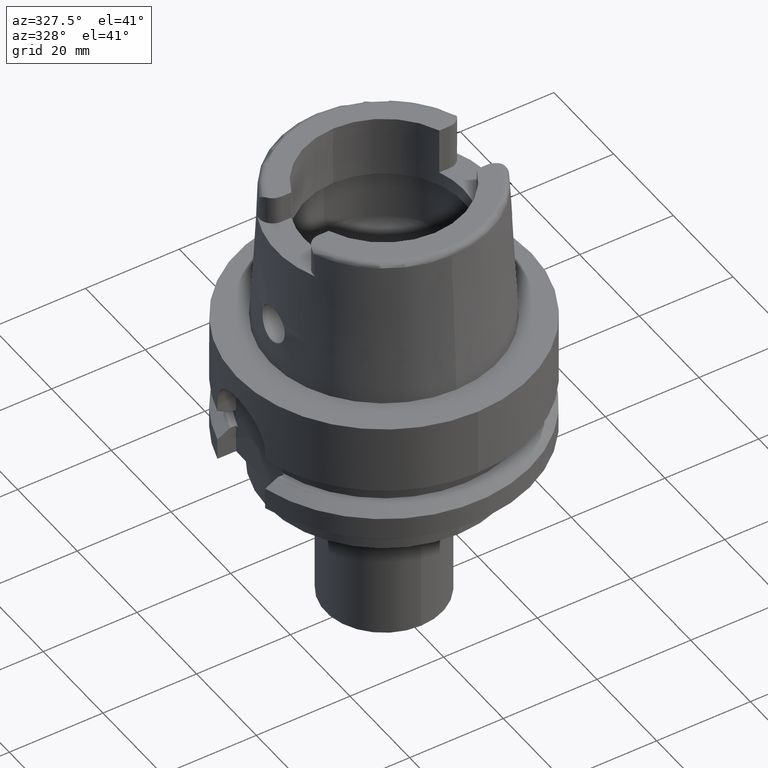
[diagram: clean part render]
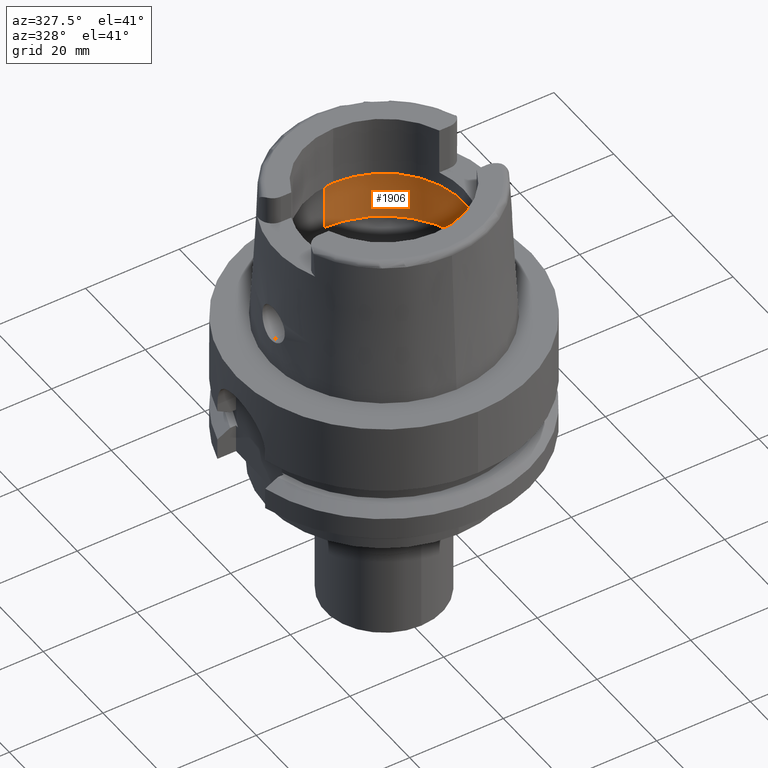
[diagram: same view with one face highlighted and labeled with its STEP entity id]
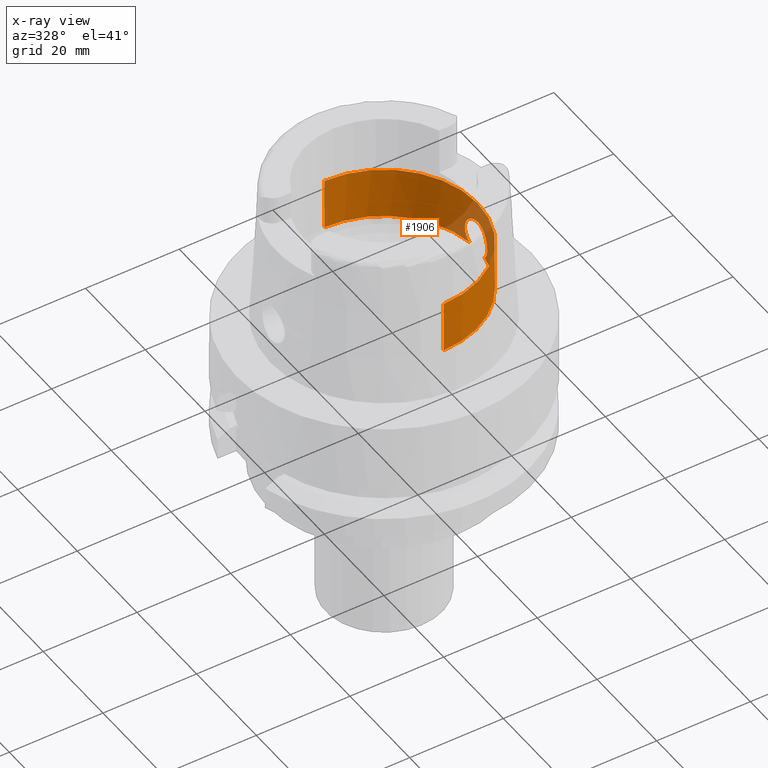
[diagram: x-ray of the same camera — body ghosted, the highlighted face saturated]
A machine part, auxiliary view. The second image highlights one B-rep face of the part: STEP entity #1906.
The next image is the same camera in x-ray: the body ghosted, the highlighted face saturated — about 10% of this face is hidden behind the body in this view.
In plain terms, the highlighted cylindrical surface (partial cylindrical patch) has radius 20 mm, axis along (0, 0, 1).
Its self-contained STEP definition (entity closure, byte-faithful):
#10 = CARTESIAN_POINT ( 'NONE',  ( 19.74131092726213765, -3.206498981390404346, 7.055552782372660481 ) ) ;
#36 = CARTESIAN_POINT ( 'NONE',  ( 19.77994931840642323, -2.958629762569791044, 11.30412953788604113 ) ) ;
#62 = CARTESIAN_POINT ( 'NONE',  ( 19.88572097810775574, -2.134995519935792174, 12.08291064213685395 ) ) ;
#75 = DIRECTION ( 'NONE',  ( 0.0000000000000000000, 0.0000000000000000000, -1.000000000000000000 ) ) ;
#89 = CARTESIAN_POINT ( 'NONE',  ( 19.87190383483499190, -2.260023419578267578, 11.99275361173333998 ) ) ;
#112 = CARTESIAN_POINT ( 'NONE',  ( 19.78104042214154390, 2.951334650346302713, 11.31346824055515476 ) ) ;
#132 = CARTESIAN_POINT ( 'NONE',  ( 0.0000000000000000000, -20.00000000000000000, 17.26397459622000241 ) ) ;
#142 = CARTESIAN_POINT ( 'NONE',  ( 19.84484628476519319, -2.487844411729646321, 11.80831997241787690 ) ) ;
#186 = CARTESIAN_POINT ( 'NONE',  ( 19.97755779190087111, 0.9483634099679646434, 12.62865541406740455 ) ) ;
#219 = CARTESIAN_POINT ( 'NONE',  ( 19.66484376200845929, 3.646110307399124117, 8.123346371387150100 ) ) ;
#272 = CARTESIAN_POINT ( 'NONE',  ( 19.70306139647798105, 3.434038270682238103, 10.50723740454209398 ) ) ;
#278 = EDGE_CURVE ( 'NONE', #1141, #1254, #4814, .T. ) ;
#313 = CARTESIAN_POINT ( 'NONE',  ( 19.67644104041750808, -3.583332437896908029, 7.893552970216084042 ) ) ;
#329 = CARTESIAN_POINT ( 'NONE',  ( 19.64449331902214269, 3.754386454679490726, 9.032734232339450386 ) ) ;
#337 = CARTESIAN_POINT ( 'NONE',  ( 19.64567225005458440, -3.748174777093760124, 9.125814050149461565 ) ) ;
#369 = CARTESIAN_POINT ( 'NONE',  ( 19.68679693927451169, -3.525636271644645436, 10.27775302223722598 ) ) ;
#429 = CARTESIAN_POINT ( 'NONE',  ( 19.74415115505275509, -3.189120257894116683, 7.027126187404764579 ) ) ;
#486 = CARTESIAN_POINT ( 'NONE',  ( 19.88548813546857374, -2.137157789161981292, 12.08140854072298964 ) ) ;
#511 = CARTESIAN_POINT ( 'NONE',  ( 19.94886221770135748, 1.436968790050982880, 12.46894194504029407 ) ) ;
#564 = VECTOR ( 'NONE', #3004, 1000.000000000000000 ) ;
#619 = AXIS2_PLACEMENT_3D ( 'NONE', #3744, #4165, #5433 ) ;
#649 = CARTESIAN_POINT ( 'NONE',  ( 19.68979791391304346, 3.508827562638470177, 10.32312775082510470 ) ) ;
#733 = CARTESIAN_POINT ( 'NONE',  ( 19.67337282253910402, 3.600029761304688325, 7.936678784553336641 ) ) ;
#764 = CARTESIAN_POINT ( 'NONE',  ( 19.68338176572754250, 3.546137626920164099, 7.765868041120041809 ) ) ;
#775 = CARTESIAN_POINT ( 'NONE',  ( 19.74918965953797212, -3.158442254329624888, 6.978260448771838931 ) ) ;
#802 = CARTESIAN_POINT ( 'NONE',  ( 19.68869315460091585, -3.515020931841343010, 10.30658548914406580 ) ) ;
#832 = CARTESIAN_POINT ( 'NONE',  ( 19.79431752073914907, -2.867975501199771404, 6.576493607708624900 ) ) ;
#863 = CARTESIAN_POINT ( 'NONE',  ( 19.66801257472020836, -3.629375775904515766, 9.948367815567300099 ) ) ;
#887 = CARTESIAN_POINT ( 'NONE',  ( 19.72344288716757177, -3.316587117348487546, 7.237451771130166023 ) ) ;
#907 = CARTESIAN_POINT ( 'NONE',  ( 0.0000000000000000000, 0.0000000000000000000, 0.0000000000000000000 ) ) ;
#914 = CARTESIAN_POINT ( 'NONE',  ( 19.87761907602075695, -2.209094455515975053, 12.03032121993772208 ) ) ;
#938 = CARTESIAN_POINT ( 'NONE',  ( 20.00000000000000000, 0.0000000000000000000, 12.75000000000000000 ) ) ;
#943 = CARTESIAN_POINT ( 'NONE',  ( 19.82521020178967319, -2.638510967768309623, 11.66478112120979205 ) ) ;
#962 = CARTESIAN_POINT ( 'NONE',  ( 19.78387844959597075, 2.932350148931121669, 11.33754225995206788 ) ) ;
#967 = CARTESIAN_POINT ( 'NONE',  ( 19.83352564524022199, -2.575126167671444755, 11.72602979336765472 ) ) ;
#991 = CYLINDRICAL_SURFACE ( 'NONE', #5551, 20.00000000000000000 ) ;
#993 = CARTESIAN_POINT ( 'NONE',  ( 19.78035299917762657, 2.955931494957801053, 11.30758951324876982 ) ) ;
#1022 = CARTESIAN_POINT ( 'NONE',  ( 19.87219514540918652, 2.258398962497759399, 11.99519121858012483 ) ) ;
#1047 = CARTESIAN_POINT ( 'NONE',  ( 19.80779135516828049, 2.767444498930293761, 11.53235272523329691 ) ) ;
#1073 = CARTESIAN_POINT ( 'NONE',  ( 19.71934763663999846, 3.340125606533761449, 10.70735474589249669 ) ) ;
#1103 = CARTESIAN_POINT ( 'NONE',  ( 19.64700974741070993, 3.741064030849914346, 9.262800762739509253 ) ) ;
#1141 = VERTEX_POINT ( 'NONE', #132 ) ;
#1161 = CARTESIAN_POINT ( 'NONE',  ( 19.69387214172886758, 3.485962106851624220, 10.38249004097151662 ) ) ;
#1200 = CARTESIAN_POINT ( 'NONE',  ( 19.75183085291806151, -3.142330445746169598, 6.953204749138342855 ) ) ;
#1232 = CARTESIAN_POINT ( 'NONE',  ( 19.64531570968894414, -3.750138433182011788, 9.033242545450496763 ) ) ;
#1254 = VERTEX_POINT ( 'NONE', #4890 ) ;
#1259 = CARTESIAN_POINT ( 'NONE',  ( 19.70837940068254568, -3.404643412914161615, 7.416775932456991960 ) ) ;
#1315 = CARTESIAN_POINT ( 'NONE',  ( 19.68420254669744551, -3.540125275269341731, 10.23736137062105911 ) ) ;
#1332 = EDGE_CURVE ( 'NONE', #3390, #3841, #3969, .T. ) ;
#1341 = CARTESIAN_POINT ( 'NONE',  ( 19.94822969443623251, -1.438253440388885362, 12.46437223983321729 ) ) ;
#1370 = CARTESIAN_POINT ( 'NONE',  ( 20.00000000000000000, 0.0000000000000000000, 12.75000000000000000 ) ) ;
#1383 = LINE ( 'NONE', #3978, #3658 ) ;
#1393 = CARTESIAN_POINT ( 'NONE',  ( 19.83454931614748773, 2.567231028002066040, 11.73346628414820358 ) ) ;
#1400 = CARTESIAN_POINT ( 'NONE',  ( 19.88037178198049304, -2.184275007335608532, 12.04829775216895804 ) ) ;
#1409 = DIRECTION ( 'NONE',  ( 0.0000000000000000000, 0.0000000000000000000, -1.000000000000000000 ) ) ;
#1418 = CARTESIAN_POINT ( 'NONE',  ( 19.84322957789766662, 2.499342754442148262, 11.79591550908429909 ) ) ;
#1421 = VERTEX_POINT ( 'NONE', #4489 ) ;
#1444 = CARTESIAN_POINT ( 'NONE',  ( 19.87981655077500065, 2.190120508452398251, 12.04488232041514451 ) ) ;
#1462 = DIRECTION ( 'NONE',  ( 0.0000000000000000000, 8.595047664279999407E-14, 1.000000000000000000 ) ) ;
#1471 = CARTESIAN_POINT ( 'NONE',  ( 19.96966805078335838, 1.100283879082658789, 12.58496644536956310 ) ) ;
#1496 = CARTESIAN_POINT ( 'NONE',  ( 19.66382532005986405, 3.651607304447822333, 8.146532922494657214 ) ) ;
#1521 = CARTESIAN_POINT ( 'NONE',  ( 19.65660986282325595, 3.690430942989006979, 8.332574227228896291 ) ) ;
#1548 = CARTESIAN_POINT ( 'NONE',  ( 19.64764802105013430, 3.737724952435224068, 9.306549739284093903 ) ) ;
#1578 = CARTESIAN_POINT ( 'NONE',  ( 19.74205555976527648, 3.204225991563652176, 10.95740465360756311 ) ) ;
#1605 = CARTESIAN_POINT ( 'NONE',  ( 19.65659531010161487, 3.690723105701081863, 9.670758817959006493 ) ) ;
#1617 = CARTESIAN_POINT ( 'NONE',  ( 19.76813686765854783, -3.040823521867730417, 6.803426762865452559 ) ) ;
#1625 = CARTESIAN_POINT ( 'NONE',  ( 0.0000000000000000000, 20.00000000000000000, 6.186348233825000875 ) ) ;
#1683 = CARTESIAN_POINT ( 'NONE',  ( 19.76078778233834754, -3.087000737577923370, 6.869889166487815224 ) ) ;
#1711 = CARTESIAN_POINT ( 'NONE',  ( 19.66636191136095491, -3.637911126190788824, 8.089920448551300325 ) ) ;
#1738 = CARTESIAN_POINT ( 'NONE',  ( 19.77148420476933666, -3.014843533679494314, 11.23036322201087600 ) ) ;
#1765 = CARTESIAN_POINT ( 'NONE',  ( 19.81723506173698013, -2.698014273964697729, 11.60464545179214646 ) ) ;
#1811 = DIRECTION ( 'NONE',  ( 0.0000000000000000000, 0.0000000000000000000, 1.000000000000000000 ) ) ;
#1812 = CARTESIAN_POINT ( 'NONE',  ( 19.89037389642532005, 2.091232206546859373, 12.11280444952491209 ) ) ;
#1819 = CARTESIAN_POINT ( 'NONE',  ( 19.88465799567630654, -2.144861259742993465, 12.07605139538824623 ) ) ;
#1844 = CARTESIAN_POINT ( 'NONE',  ( 19.78063280847530336, 2.954060147373581913, 11.30998512962131564 ) ) ;
#1851 = CARTESIAN_POINT ( 'NONE',  ( 19.82771805963779599, -2.619575114828136542, 11.68345080292819915 ) ) ;
#1860 = CARTESIAN_POINT ( 'NONE',  ( 0.0000000000000000000, 0.0000000000000000000, 6.186348233825000875 ) ) ;
#1873 = CARTESIAN_POINT ( 'NONE',  ( 19.96506605055864725, -1.180778185228313015, 12.55936090701971430 ) ) ;
#1887 = CARTESIAN_POINT ( 'NONE',  ( 20.00000000000000000, 0.0000000000000000000, 12.75000000000000000 ) ) ;
#1906 = ADVANCED_FACE ( 'NONE', ( #3079 ), #991, .F. ) ;
#1925 = CARTESIAN_POINT ( 'NONE',  ( 19.97347556229143706, 1.029395932994164875, 12.60608635935667898 ) ) ;
#1955 = CARTESIAN_POINT ( 'NONE',  ( 19.74753952450370420, 3.168114407030727886, 6.992169942888825318 ) ) ;
#2011 = CARTESIAN_POINT ( 'NONE',  ( 19.81729801845683525, 2.706920410697768897, 6.387091895491624705 ) ) ;
#2039 = CARTESIAN_POINT ( 'NONE',  ( 19.65905063151380716, 3.677335410067570809, 8.262669112699423835 ) ) ;
#2080 = CARTESIAN_POINT ( 'NONE',  ( 19.67532642737656090, -3.589289528801690832, 10.08711461562989165 ) ) ;
#2116 = CARTESIAN_POINT ( 'NONE',  ( 19.69932404959006789, -3.455400836644724194, 10.46542284201223438 ) ) ;
#2144 = CARTESIAN_POINT ( 'NONE',  ( 19.66775111308025714, -3.630408729191124451, 8.060454858114987076 ) ) ;
#2170 = CARTESIAN_POINT ( 'NONE',  ( 19.64670351445987961, -3.743100740243093583, 8.754046710423709854 ) ) ;
#2227 = CARTESIAN_POINT ( 'NONE',  ( 19.96682136414166919, -1.150601680670573224, 12.56913527898136174 ) ) ;
#2250 = CARTESIAN_POINT ( 'NONE',  ( 19.96797244988159292, -1.130540668165490370, 12.57554033187366826 ) ) ;
#2274 = CARTESIAN_POINT ( 'NONE',  ( 19.92065161710602439, 1.780484663954182256, 12.30188687976695761 ) ) ;
#2277 = CARTESIAN_POINT ( 'NONE',  ( 19.90499901129786409, -1.955028287688917565, 12.20707272789874942 ) ) ;
#2303 = CARTESIAN_POINT ( 'NONE',  ( 19.89436365714707478, 2.053016231431098682, 12.13828362116976578 ) ) ;
#2381 = CARTESIAN_POINT ( 'NONE',  ( 19.64994890436063102, 3.725985055390649947, 8.566025683150973791 ) ) ;
#2462 = CARTESIAN_POINT ( 'NONE',  ( 19.66542543864453663, 3.642968964915142660, 8.110400131248070466 ) ) ;
#2495 = CARTESIAN_POINT ( 'NONE',  ( 19.73356091928279454, 3.254002997961551902, 7.135828433190870790 ) ) ;
#2505 = CARTESIAN_POINT ( 'NONE',  ( 19.64574942769600341, -3.748046354143266701, 8.847370295865209400 ) ) ;
#2537 = CARTESIAN_POINT ( 'NONE',  ( 19.68915410328390081, -3.512437281136043143, 10.31351000180555388 ) ) ;
#2602 = CARTESIAN_POINT ( 'NONE',  ( 19.77584006671131789, -2.986015561721155009, 11.26859914736232682 ) ) ;
#2627 = CARTESIAN_POINT ( 'NONE',  ( 19.80848491737023664, -2.761984304172902860, 11.53727777583330649 ) ) ;
#2647 = CIRCLE ( 'NONE', #3559, 20.00000000000000000 ) ;
#2660 = CARTESIAN_POINT ( 'NONE',  ( 19.78373463610960314, -2.933306181397549395, 11.33658643588921144 ) ) ;
#2685 = CARTESIAN_POINT ( 'NONE',  ( 19.83431401095009505, 2.569049695080321438, 11.73175884924898327 ) ) ;
#2688 = CARTESIAN_POINT ( 'NONE',  ( 19.96076952405309868, -1.251770160899873918, 12.53536669423273153 ) ) ;
#2721 = DIRECTION ( 'NONE',  ( 0.9922879323327794543, -0.1239542631244973381, 0.0000000000000000000 ) ) ;
#2733 = CARTESIAN_POINT ( 'NONE',  ( 19.78040335193887955, 2.955594612246670305, 11.30802155451077340 ) ) ;
#2756 = ORIENTED_EDGE ( 'NONE', *, *, #2764, .T. ) ;
#2762 = CARTESIAN_POINT ( 'NONE',  ( 19.84703328004637513, 2.468832949214228467, 11.82277566709594474 ) ) ;
#2764 = EDGE_CURVE ( 'NONE', #4016, #3766, #2647, .T. ) ;
#2785 = CARTESIAN_POINT ( 'NONE',  ( 19.79438634394649910, 2.861122390806434268, 11.42461203282918270 ) ) ;
#2812 = CARTESIAN_POINT ( 'NONE',  ( 19.66232838499476188, 3.659682670108474589, 8.181333589078116475 ) ) ;
#2838 = CARTESIAN_POINT ( 'NONE',  ( 19.66732174102461528, 3.633294034753394186, 9.947149511074082184 ) ) ;
#2869 = CARTESIAN_POINT ( 'NONE',  ( 19.74102061481196202, 3.208285819983020204, 7.058504823404974537 ) ) ;
#2872 = ORIENTED_EDGE ( 'NONE', *, *, #278, .T. ) ;
#2897 = CARTESIAN_POINT ( 'NONE',  ( 19.73920497645156402, 3.219458317785986790, 7.077069268003664426 ) ) ;
#2926 = CARTESIAN_POINT ( 'NONE',  ( 19.69160611044457099, 3.498684623233164537, 10.34977014553504837 ) ) ;
#2927 = CIRCLE ( 'NONE', #3657, 20.00000000000001421 ) ;
#2941 = CARTESIAN_POINT ( 'NONE',  ( 19.68394416425375937, -3.542262427058845198, 7.765956865156419475 ) ) ;
#2994 = CARTESIAN_POINT ( 'NONE',  ( 19.65153171544580601, -3.717638719447328821, 8.473837438890603480 ) ) ;
#3004 = DIRECTION ( 'NONE',  ( 0.0000000000000000000, -8.595047664279999407E-14, 1.000000000000000000 ) ) ;
#3029 = CARTESIAN_POINT ( 'NONE',  ( 19.74175830322765535, -3.203750993440732664, 7.051028358760310866 ) ) ;
#3057 = CARTESIAN_POINT ( 'NONE',  ( 19.77804502965694766, -2.971343462576299110, 11.28772845643700506 ) ) ;
#3068 = DIRECTION ( 'NONE',  ( 0.0000000000000000000, 1.000000000000000000, 0.0000000000000000000 ) ) ;
#3079 = FACE_OUTER_BOUND ( 'NONE', #4164, .T. ) ;
#3104 = CARTESIAN_POINT ( 'NONE',  ( 0.0000000000000000000, 0.0000000000000000000, 6.186348233825000875 ) ) ;
#3112 = CARTESIAN_POINT ( 'NONE',  ( 19.98970393320183092, 0.6463271209293240949, 12.69507564038562997 ) ) ;
#3119 = CARTESIAN_POINT ( 'NONE',  ( 19.96845099337024010, -1.122105711090628954, 12.57820132985408534 ) ) ;
#3125 = LINE ( 'NONE', #3499, #564 ) ;
#3142 = CARTESIAN_POINT ( 'NONE',  ( 19.81946110243253756, 2.683563911557556914, 11.62379055658502125 ) ) ;
#3147 = CARTESIAN_POINT ( 'NONE',  ( 19.88339967165877908, -2.156503819859461935, 12.06792275542657400 ) ) ;
#3168 = CARTESIAN_POINT ( 'NONE',  ( 19.99999999999999289, 0.1824445691493601640, 12.75000000000000178 ) ) ;
#3173 = CARTESIAN_POINT ( 'NONE',  ( 19.78993467062188572, -2.892231327595814250, 11.38883875298427917 ) ) ;
#3224 = CARTESIAN_POINT ( 'NONE',  ( 19.83523142588756727, 2.561954222505868017, 11.73841261308369965 ) ) ;
#3248 = CARTESIAN_POINT ( 'NONE',  ( 19.75946864563454142, 3.098053247361510554, 6.878522078722609123 ) ) ;
#3276 = CARTESIAN_POINT ( 'NONE',  ( 19.73730633561737946, 3.231110668672029007, 7.096655575936588356 ) ) ;
#3368 = CARTESIAN_POINT ( 'NONE',  ( 19.64927636389870358, 3.729209315266586167, 9.396936324416113706 ) ) ;
#3378 = CARTESIAN_POINT ( 'NONE',  ( 19.74123836035699853, -3.206946696535284858, 7.056293648059137169 ) ) ;
#3390 = VERTEX_POINT ( 'NONE', #3542 ) ;
#3409 = CARTESIAN_POINT ( 'NONE',  ( 19.81728248561957173, -2.707044755351535326, 6.387201454535970768 ) ) ;
#3438 = CARTESIAN_POINT ( 'NONE',  ( 19.74144472289700758, -3.205677663090756635, 7.054201393423560340 ) ) ;
#3465 = CARTESIAN_POINT ( 'NONE',  ( 19.75607763111756654, -3.114716045078195439, 11.08894487018637420 ) ) ;
#3481 = CARTESIAN_POINT ( 'NONE',  ( 19.84575864665999845, 2.479085262491000030, 6.186348233825000875 ) ) ;
#3493 = CARTESIAN_POINT ( 'NONE',  ( 19.66924151604434456, -3.622359080176763335, 8.029529403825723222 ) ) ;
#3499 = CARTESIAN_POINT ( 'NONE',  ( 0.0000000000000000000, 20.00000000000000000, 6.186348233825000875 ) ) ;
#3514 = EDGE_CURVE ( 'NONE', #3841, #3766, #4205, .T. ) ;
#3542 = CARTESIAN_POINT ( 'NONE',  ( 19.84575864665999845, -2.479085262491000030, 6.186348233825000875 ) ) ;
#3559 = AXIS2_PLACEMENT_3D ( 'NONE', #3104, #75, #3068 ) ;
#3566 = CARTESIAN_POINT ( 'NONE',  ( 19.88748340107699875, 2.118519077439541043, 12.09425605762012701 ) ) ;
#3572 = CARTESIAN_POINT ( 'NONE',  ( 19.83075600640872338, -2.596396603359425015, 11.70580430743488520 ) ) ;
#3592 = CARTESIAN_POINT ( 'NONE',  ( 19.97163554254138518, 1.064070790078269102, 12.59588636627706570 ) ) ;
#3599 = CARTESIAN_POINT ( 'NONE',  ( 19.83297134730343814, -2.579393718962111670, 11.72199380028497551 ) ) ;
#3617 = CARTESIAN_POINT ( 'NONE',  ( 19.88672344380425727, 2.125637347685981560, 12.08936677997722953 ) ) ;
#3646 = CARTESIAN_POINT ( 'NONE',  ( 19.97038875320253837, 1.087174255878884166, 12.58896886902481782 ) ) ;
#3657 = AXIS2_PLACEMENT_3D ( 'NONE', #1860, #1409, #2721 ) ;
#3658 = VECTOR ( 'NONE', #1462, 1000.000000000000000 ) ;
#3667 = ORIENTED_EDGE ( 'NONE', *, *, #4880, .T. ) ;
#3674 = CARTESIAN_POINT ( 'NONE',  ( 19.85443053431346883, 2.408780960118004355, 11.87455538782473141 ) ) ;
#3699 = CARTESIAN_POINT ( 'NONE',  ( 19.64510228684018855, 3.751540718180835121, 8.846261252290124943 ) ) ;
#3729 = CARTESIAN_POINT ( 'NONE',  ( 19.69003129547366626, 3.507518724153406708, 10.32658845285329896 ) ) ;
#3737 = ORIENTED_EDGE ( 'NONE', *, *, #5277, .F. ) ;
#3744 = CARTESIAN_POINT ( 'NONE',  ( 0.0000000000000000000, 0.0000000000000000000, 17.26397459622000241 ) ) ;
#3766 = VERTEX_POINT ( 'NONE', #3481 ) ;
#3785 = CARTESIAN_POINT ( 'NONE',  ( 19.71243758620882858, 3.380336076015602043, 10.62584186372218298 ) ) ;
#3793 = CARTESIAN_POINT ( 'NONE',  ( 19.65304987153607286, -3.709705687190240742, 9.579633922109680455 ) ) ;
#3811 = CARTESIAN_POINT ( 'NONE',  ( 19.69065813119354758, 3.504002800636223824, 10.33584763227845293 ) ) ;
#3833 = EDGE_CURVE ( 'NONE', #1421, #1141, #1383, .T. ) ;
#3841 = VERTEX_POINT ( 'NONE', #1887 ) ;
#3852 = CARTESIAN_POINT ( 'NONE',  ( 19.68793162768649552, -3.519285884262789654, 10.29505392032660360 ) ) ;
#3879 = CARTESIAN_POINT ( 'NONE',  ( 19.66677727407829934, -3.635668118262187498, 8.081016894345323109 ) ) ;
#3930 = CARTESIAN_POINT ( 'NONE',  ( 19.80333484087282869, -2.798584058561369492, 11.49653568514205659 ) ) ;
#3969 = B_SPLINE_CURVE_WITH_KNOTS ( 'NONE', 3,
 ( #5573, #3409, #832, #1617, #1683, #1200, #775, #5542, #429, #5631, #3029, #3438, #3378, #10, #887, #1259, #5147, #2941, #313, #4283, #3493, #2144, #3879, #1711, #4321, #2994, #2170, #2505, #4743, #1232, #337, #4717, #4250, #3793, #5114, #863, #2080, #5234, #1315, #369, #3852, #802, #2537, #2116, #5606, #4350, #5174, #3465, #5203, #1738, #2602, #3057, #4800, #4825, #36, #4046, #2660, #3173, #3930, #2627, #1765, #5258, #943, #1851, #3572, #4910, #3599, #967, #142, #4410, #4019, #89, #914, #1400, #3147, #1819, #486, #62, #2277, #4854, #5316, #1341, #4378, #2688, #1873, #2227, #2250, #3119, #4885, #4436, #1370 ),
 .UNSPECIFIED., .F., .F.,
 ( 4, 2, 2, 2, 1, 1, 1, 2, 2, 2, 2, 1, 1, 2, 2, 2, 2, 2, 2, 2, 2, 1, 1, 1, 2, 2, 2, 2, 1, 1, 1, 1, 1, 2, 2, 2, 2, 2, 1, 1, 2, 2, 2, 2, 1, 1, 2, 2, 2, 2, 1, 1, 2, 2, 4 ),
 ( 0.0000000000000000000, 0.06249999999999024392, 0.09374999999998527567, 0.1093749999999828748, 0.1171874999999819589, 0.1210937499999812789, 0.1230468749999807654, 0.1240234374999804184, 0.1249999999999800715, 0.1874999999999710787, 0.2187499999999667766, 0.2343749999999648892, 0.2421874999999636680, 0.2460937499999633626, 0.2499999999999630851, 0.3124999999999651945, 0.3437499999999659717, 0.3593749999999663602, 0.3749999999999667488, 0.4374999999999690248, 0.4687499999999701350, 0.4843749999999706901, 0.4921874999999710232, 0.4960937499999714118, 0.4980468749999716338, 0.4999999999999719114, 0.5624999999999760192, 0.5937499999999781286, 0.6093749999999793499, 0.6171874999999799050, 0.6210937499999800160, 0.6230468749999802380, 0.6240234374999804601, 0.6245117187499805711, 0.6249999999999806821, 0.6562499999999871214, 0.6718749999999904521, 0.6796874999999923395, 0.6835937499999933387, 0.6855468749999936717, 0.6865234374999937828, 0.6874999999999937828, 0.7187499999999993339, 0.7343750000000019984, 0.7421875000000031086, 0.7460937500000037748, 0.7480468750000039968, 0.7500000000000042188, 0.8125000000000035527, 0.8437500000000032196, 0.8593750000000031086, 0.8671875000000031086, 0.8710937500000029976, 0.8750000000000029976, 1.000000000000000000 ),
 .UNSPECIFIED. ) ;
#3978 = CARTESIAN_POINT ( 'NONE',  ( 0.0000000000000000000, -20.00000000000000000, 6.186348233825000875 ) ) ;
#3986 = CARTESIAN_POINT ( 'NONE',  ( 19.90214223941685034, 1.976564060305121773, 12.18753425331091833 ) ) ;
#3990 = ORIENTED_EDGE ( 'NONE', *, *, #3833, .T. ) ;
#4014 = CARTESIAN_POINT ( 'NONE',  ( 19.78191169882498102, 2.945509432313827336, 11.32088945357150322 ) ) ;
#4016 = VERTEX_POINT ( 'NONE', #1625 ) ;
#4019 = CARTESIAN_POINT ( 'NONE',  ( 19.86781390168937378, -2.295698450211379527, 11.96555664430646004 ) ) ;
#4046 = CARTESIAN_POINT ( 'NONE',  ( 19.78021384794726600, -2.956860517874103866, 11.30639897347374401 ) ) ;
#4090 = CARTESIAN_POINT ( 'NONE',  ( 19.98648641232740175, 0.7393781983142692082, 12.67762134086851233 ) ) ;
#4126 = CARTESIAN_POINT ( 'NONE',  ( 19.65025279650012990, 3.724104942224815140, 9.442327195908161386 ) ) ;
#4164 = EDGE_LOOP ( 'NONE', ( #3667, #3990, #2872, #3737, #2756, #4427, #5164 ) ) ;
#4165 = DIRECTION ( 'NONE',  ( 0.0000000000000000000, 0.0000000000000000000, 1.000000000000000000 ) ) ;
#4205 = B_SPLINE_CURVE_WITH_KNOTS ( 'NONE', 3,
 ( #938, #3168, #4848, #3112, #4090, #5337, #186, #1925, #3592, #3646, #1471, #4934, #511, #4459, #2274, #5363, #3986, #2303, #1812, #5310, #3566, #3617, #1444, #1022, #5392, #3674, #2762, #1418, #4511, #4964, #3224, #1393, #2685, #3142, #1047, #2785, #4532, #4879, #962, #4014, #112, #1844, #4905, #993, #2733, #4486, #1578, #1073, #3785, #272, #4241, #1161, #2926, #3811, #3729, #649, #4561, #2838, #1605, #5477, #4126, #3368, #1548, #1103, #329, #3699, #2381, #4676, #1521, #2039, #2812, #1496, #219, #2462, #733, #764, #4593, #5509, #5534, #4989, #2495, #3276, #2897, #4619, #5447, #2869, #1955, #3248, #5016, #2011, #4211 ),
 .UNSPECIFIED., .F., .F.,
 ( 4, 2, 2, 1, 1, 2, 2, 2, 2, 1, 1, 1, 2, 2, 2, 2, 1, 1, 1, 2, 2, 2, 2, 1, 1, 1, 1, 2, 2, 2, 2, 1, 1, 1, 2, 2, 2, 2, 2, 2, 2, 2, 1, 1, 2, 2, 2, 2, 1, 1, 1, 1, 2, 2, 2, 4 ),
 ( 0.0000000000000000000, 0.06249999999995203837, 0.09374999999992805755, 0.1093749999999160394, 0.1171874999999100442, 0.1210937499999071160, 0.1249999999999041878, 0.1874999999998581135, 0.2187499999998349931, 0.2343749999998234190, 0.2421874999998174516, 0.2460937499998144817, 0.2480468749998128442, 0.2499999999998112066, 0.2812499999997874478, 0.2968749999997754019, 0.3046874999997695732, 0.3085937499997665756, 0.3105468749997651323, 0.3115234374997644107, 0.3124999999997637445, 0.3437499999997428168, 0.3593749999997323807, 0.3671874999997271627, 0.3710937499997245537, 0.3730468749997226663, 0.3740234374997223332, 0.3745117187497226108, 0.3749999999997228328, 0.4374999999997525868, 0.4687499999997677413, 0.4843749999997755684, 0.4921874999997795097, 0.4960937499997817302, 0.4980468749997826183, 0.4999999999997835065, 0.5624999999998115952, 0.5937499999998253619, 0.6093749999998322453, 0.6249999999998391287, 0.6874999999998685496, 0.7187499999998829825, 0.7343749999998898659, 0.7421874999998933076, 0.7460937499998947509, 0.7499999999998961941, 0.8124999999999227285, 0.8437499999999360512, 0.8593749999999426015, 0.8671874999999458211, 0.8710937499999475975, 0.8730468749999482636, 0.8740234374999488187, 0.8749999999999492628, 0.9374999999999746869, 1.000000000000000000 ),
 .UNSPECIFIED. ) ;
#4211 = CARTESIAN_POINT ( 'NONE',  ( 19.84575864665999845, 2.479085262491000030, 6.186348233825000875 ) ) ;
#4241 = CARTESIAN_POINT ( 'NONE',  ( 19.69862052309151679, 3.459236102496726417, 10.44884803338262991 ) ) ;
#4250 = CARTESIAN_POINT ( 'NONE',  ( 19.64848767245079841, -3.733237209533557532, 9.396954622845319349 ) ) ;
#4283 = CARTESIAN_POINT ( 'NONE',  ( 19.67292663418860599, -3.602433946332956438, 7.956806466076316475 ) ) ;
#4321 = CARTESIAN_POINT ( 'NONE',  ( 19.65737177036214689, -3.686475102939749782, 8.286703263344485038 ) ) ;
#4350 = CARTESIAN_POINT ( 'NONE',  ( 19.73452350946227440, -3.249295673654311045, 10.87445150619249290 ) ) ;
#4378 = CARTESIAN_POINT ( 'NONE',  ( 19.95674256737079943, -1.313563109943429508, 12.51269682009778528 ) ) ;
#4410 = CARTESIAN_POINT ( 'NONE',  ( 19.85470478518714543, -2.407299367905407550, 11.87688027085846976 ) ) ;
#4427 = ORIENTED_EDGE ( 'NONE', *, *, #3514, .F. ) ;
#4436 = CARTESIAN_POINT ( 'NONE',  ( 20.00000000000000000, -0.3650141788571475976, 12.75000000000000000 ) ) ;
#4459 = CARTESIAN_POINT ( 'NONE',  ( 19.92816355679473617, 1.693849559018707929, 12.34699238896986984 ) ) ;
#4486 = CARTESIAN_POINT ( 'NONE',  ( 19.75983120429117079, 3.093214704104263912, 11.13162058597232118 ) ) ;
#4489 = CARTESIAN_POINT ( 'NONE',  ( 0.0000000000000000000, -20.00000000000000000, 6.186348233825000875 ) ) ;
#4511 = CARTESIAN_POINT ( 'NONE',  ( 19.83860804411427026, 2.535696360732668353, 11.76280631808202948 ) ) ;
#4532 = CARTESIAN_POINT ( 'NONE',  ( 19.79060127515167977, 2.886966952335296099, 11.39353841129581646 ) ) ;
#4561 = CARTESIAN_POINT ( 'NONE',  ( 19.67706887380763803, 3.580205050033934189, 10.13289494600277152 ) ) ;
#4593 = CARTESIAN_POINT ( 'NONE',  ( 19.70218875920641466, 3.439675270222204873, 7.503319514502590160 ) ) ;
#4619 = CARTESIAN_POINT ( 'NONE',  ( 19.74002423666623685, 3.214420070149433872, 7.068675512067201794 ) ) ;
#4676 = CARTESIAN_POINT ( 'NONE',  ( 19.65221997116633545, 3.713923221478404813, 8.472529495153700907 ) ) ;
#4717 = CARTESIAN_POINT ( 'NONE',  ( 19.64602842637954083, -3.746263263456872217, 9.173262447103281758 ) ) ;
#4743 = CARTESIAN_POINT ( 'NONE',  ( 19.64530126789732023, -3.750265138780433993, 8.986838932569952476 ) ) ;
#4794 = DIRECTION ( 'NONE',  ( 0.0000000000000000000, 1.000000000000000000, 0.0000000000000000000 ) ) ;
#4800 = CARTESIAN_POINT ( 'NONE',  ( 19.77915426912340280, -2.963942508831507450, 11.29729531376784735 ) ) ;
#4814 = CIRCLE ( 'NONE', #619, 20.00000000000000000 ) ;
#4825 = CARTESIAN_POINT ( 'NONE',  ( 19.77963110560769522, -2.960756723470611362, 11.30139579901986480 ) ) ;
#4848 = CARTESIAN_POINT ( 'NONE',  ( 19.99742598330044885, 0.3676244299906729629, 12.73666204253933820 ) ) ;
#4854 = CARTESIAN_POINT ( 'NONE',  ( 19.92124507729067417, -1.779688380220058708, 12.30622669843353023 ) ) ;
#4879 = CARTESIAN_POINT ( 'NONE',  ( 19.78594857437810361, 2.918440442476230245, 11.35488459616926882 ) ) ;
#4880 = EDGE_CURVE ( 'NONE', #3390, #1421, #2927, .T. ) ;
#4885 = CARTESIAN_POINT ( 'NONE',  ( 19.98969828354946543, -0.7412733000662162786, 12.69628209669236085 ) ) ;
#4890 = CARTESIAN_POINT ( 'NONE',  ( 0.0000000000000000000, 20.00000000000000000, 17.26397459622000241 ) ) ;
#4905 = CARTESIAN_POINT ( 'NONE',  ( 19.78046412219169170, 2.955188272292972762, 11.30854123633112707 ) ) ;
#4910 = CARTESIAN_POINT ( 'NONE',  ( 19.83208200772798335, -2.586226617029022901, 11.71550254862367169 ) ) ;
#4934 = CARTESIAN_POINT ( 'NONE',  ( 19.96021178075976721, 1.269834381864664241, 12.53241165003615443 ) ) ;
#4964 = CARTESIAN_POINT ( 'NONE',  ( 19.83625130690345628, 2.554051076477483306, 11.74579928966850062 ) ) ;
#4989 = CARTESIAN_POINT ( 'NONE',  ( 19.72627754794857680, 3.298153314085008780, 7.214149333720522250 ) ) ;
#5016 = CARTESIAN_POINT ( 'NONE',  ( 19.79434789261110339, 2.867753445679955604, 6.576244098770386515 ) ) ;
#5114 = CARTESIAN_POINT ( 'NONE',  ( 19.66378537350636080, -3.652227835690613045, 9.855908744268113253 ) ) ;
#5147 = CARTESIAN_POINT ( 'NONE',  ( 19.68957866198251239, -3.511058686939066753, 7.679435461192253953 ) ) ;
#5164 = ORIENTED_EDGE ( 'NONE', *, *, #1332, .F. ) ;
#5174 = CARTESIAN_POINT ( 'NONE',  ( 19.74274971895246367, -3.198916160645176365, 10.95959747033547060 ) ) ;
#5203 = CARTESIAN_POINT ( 'NONE',  ( 19.76298873668256562, -3.070458925905027670, 11.15402201812486993 ) ) ;
#5234 = CARTESIAN_POINT ( 'NONE',  ( 19.67922661641361870, -3.567794915130105160, 10.15650176977800356 ) ) ;
#5258 = CARTESIAN_POINT ( 'NONE',  ( 19.82032261479599811, -2.675177149870982429, 11.62814029700989948 ) ) ;
#5277 = EDGE_CURVE ( 'NONE', #4016, #1254, #3125, .T. ) ;
#5310 = CARTESIAN_POINT ( 'NONE',  ( 19.88864246977594874, 2.107605236697914108, 12.10170014634517699 ) ) ;
#5316 = CARTESIAN_POINT ( 'NONE',  ( 19.94194249971984689, -1.522858674652372013, 12.42817486209021638 ) ) ;
#5337 = CARTESIAN_POINT ( 'NONE',  ( 19.98069487475342854, 0.8787380985964050595, 12.64590030936306242 ) ) ;
#5363 = CARTESIAN_POINT ( 'NONE',  ( 19.90846512849320860, 1.911096005969492362, 12.22687661792417479 ) ) ;
#5392 = CARTESIAN_POINT ( 'NONE',  ( 19.85908183711774555, 2.370038973758456624, 11.90648831758938897 ) ) ;
#5433 = DIRECTION ( 'NONE',  ( 0.0000000000000000000, -1.000000000000000000, 0.0000000000000000000 ) ) ;
#5447 = CARTESIAN_POINT ( 'NONE',  ( 19.74057164503159711, 3.211051353427875732, 7.063079797534919102 ) ) ;
#5477 = CARTESIAN_POINT ( 'NONE',  ( 19.65366887783586591, 3.706172242367288483, 9.578991524704203897 ) ) ;
#5509 = CARTESIAN_POINT ( 'NONE',  ( 19.70909002014874645, 3.399918839424226125, 7.414767465599738649 ) ) ;
#5534 = CARTESIAN_POINT ( 'NONE',  ( 19.72039030623628264, 3.333247495280648565, 7.281151923262707548 ) ) ;
#5542 = CARTESIAN_POINT ( 'NONE',  ( 19.74574454410783275, -3.179425658414085198, 7.011552224886977491 ) ) ;
#5551 = AXIS2_PLACEMENT_3D ( 'NONE', #907, #1811, #4794 ) ;
#5573 = CARTESIAN_POINT ( 'NONE',  ( 19.84575864665999845, -2.479085262491000030, 6.186348233825000875 ) ) ;
#5606 = CARTESIAN_POINT ( 'NONE',  ( 19.71182207685127352, -3.385164845277468082, 10.62453755446936832 ) ) ;
#5631 = CARTESIAN_POINT ( 'NONE',  ( 19.74251824631018337, -3.199092861829219370, 7.043382502182162774 ) ) ;